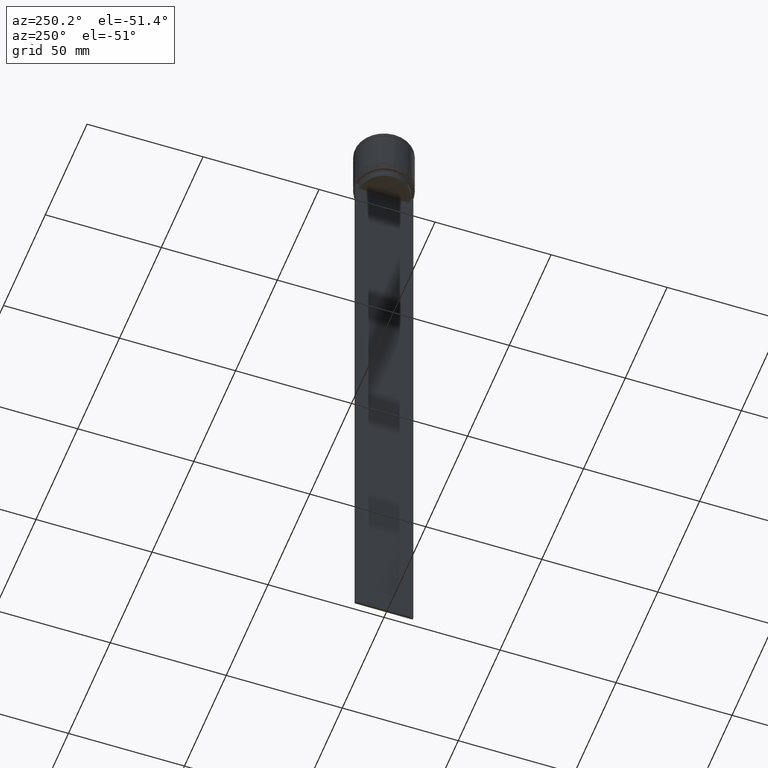
[diagram: clean part render]
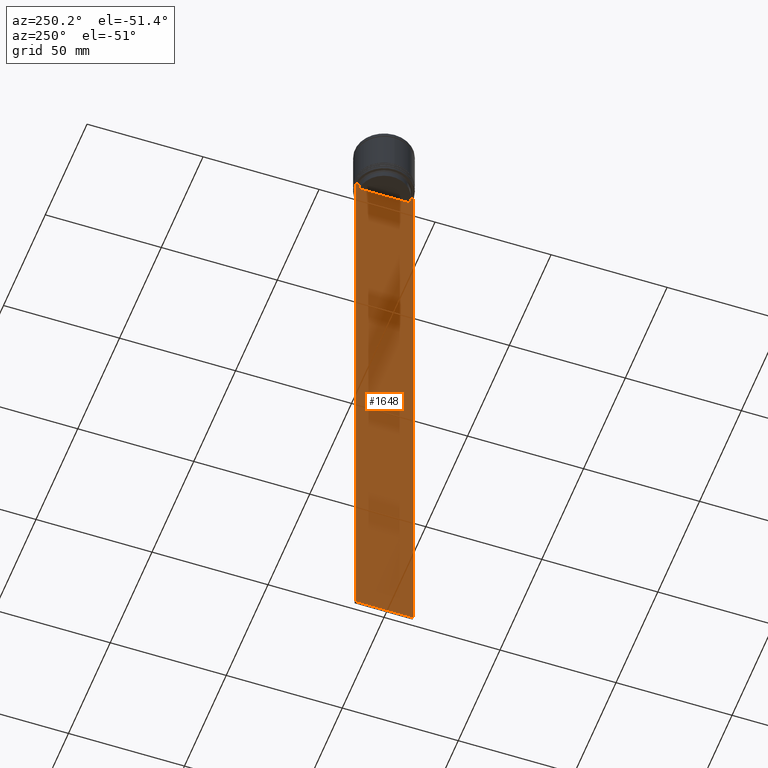
[diagram: same view with one face highlighted and labeled with its STEP entity id]
A machine part, auxiliary view. The second image highlights one B-rep face of the part: STEP entity #1648.
In plain terms, the highlighted planar face has unit normal (-1, 0, 0).
Its self-contained STEP definition (entity closure, byte-faithful):
#14 = DIRECTION ( 'NONE',  ( -0.000000000000000000, -0.000000000000000000, 1.000000000000000000 ) ) ;
#18 = EDGE_CURVE ( 'NONE', #106, #511, #996, .T. ) ;
#19 = CARTESIAN_POINT ( 'NONE',  ( -0.5000000000000000000, 12.38991525394746596, -22.50000000000000000 ) ) ;
#26 = AXIS2_PLACEMENT_3D ( 'NONE', #1217, #409, #1652 ) ;
#34 = LINE ( 'NONE', #1143, #1116 ) ;
#48 = ORIENTED_EDGE ( 'NONE', *, *, #859, .T. ) ;
#55 = EDGE_CURVE ( 'NONE', #2069, #106, #967, .T. ) ;
#103 = ORIENTED_EDGE ( 'NONE', *, *, #1819, .F. ) ;
#106 = VERTEX_POINT ( 'NONE', #701 ) ;
#107 = VERTEX_POINT ( 'NONE', #1813 ) ;
#110 = EDGE_CURVE ( 'NONE', #399, #107, #1956, .T. ) ;
#114 = VECTOR ( 'NONE', #1964, 1000.000000000000000 ) ;
#136 = EDGE_CURVE ( 'NONE', #511, #1829, #857, .T. ) ;
#141 = LINE ( 'NONE', #827, #1552 ) ;
#146 = CARTESIAN_POINT ( 'NONE',  ( -0.5000000000000000000, -11.05536450423839412, -22.83333718996392747 ) ) ;
#164 = CARTESIAN_POINT ( 'NONE',  ( -0.5000000000000000000, 11.38902980942626897, -22.50000000000000000 ) ) ;
#176 = DIRECTION ( 'NONE',  ( 0.000000000000000000, -1.000000000000000000, 0.000000000000000000 ) ) ;
#194 = CARTESIAN_POINT ( 'NONE',  ( -0.5000000000000000000, 10.88852607105296855, -25.50000000000000000 ) ) ;
#222 = LINE ( 'NONE', #865, #1441 ) ;
#239 = ORIENTED_EDGE ( 'NONE', *, *, #1236, .F. ) ;
#250 = ORIENTED_EDGE ( 'NONE', *, *, #18, .F. ) ;
#269 = EDGE_CURVE ( 'NONE', #356, #871, #1378, .T. ) ;
#353 = ORIENTED_EDGE ( 'NONE', *, *, #55, .F. ) ;
#356 = VERTEX_POINT ( 'NONE', #412 ) ;
#375 = VECTOR ( 'NONE', #1844, 1000.000000000000000 ) ;
#384 = EDGE_CURVE ( 'NONE', #1619, #619, #222, .T. ) ;
#390 = CARTESIAN_POINT ( 'NONE',  ( -0.5000000000000000000, -12.49999999999999289, -294.5000000000000568 ) ) ;
#399 = VERTEX_POINT ( 'NONE', #390 ) ;
#409 = DIRECTION ( 'NONE',  ( -1.000000000000000000, 0.000000000000000000, 0.000000000000000000 ) ) ;
#412 = CARTESIAN_POINT ( 'NONE',  ( -0.5000000000000000000, 11.38902980942626897, -22.50000000000000000 ) ) ;
#486 = CARTESIAN_POINT ( 'NONE',  ( -0.5000000000000000000, -12.49999999999999289, -294.5000000000000568 ) ) ;
#511 = VERTEX_POINT ( 'NONE', #1603 ) ;
#546 = DIRECTION ( 'NONE',  ( 0.000000000000000000, 0.000000000000000000, -1.000000000000000000 ) ) ;
#565 = CARTESIAN_POINT ( 'NONE',  ( -0.5000000000000000000, 10.88852607105297032, 0.000000000000000000 ) ) ;
#595 = ORIENTED_EDGE ( 'NONE', *, *, #269, .F. ) ;
#619 = VERTEX_POINT ( 'NONE', #1621 ) ;
#639 = VECTOR ( 'NONE', #733, 1000.000000000000000 ) ;
#699 = VERTEX_POINT ( 'NONE', #19 ) ;
#701 = CARTESIAN_POINT ( 'NONE',  ( -0.5000000000000000000, -10.88852607105296855, -25.50000000000000000 ) ) ;
#714 = CARTESIAN_POINT ( 'NONE',  ( -0.5000000000000000000, 12.50000000000000711, -22.50000000000000000 ) ) ;
#717 = ORIENTED_EDGE ( 'NONE', *, *, #1880, .F. ) ;
#730 = CARTESIAN_POINT ( 'NONE',  ( -0.5000000000000000000, -12.38991525394746596, -22.50000000000000000 ) ) ;
#733 = DIRECTION ( 'NONE',  ( 0.000000000000000000, -1.000000000000000000, 0.000000000000000000 ) ) ;
#734 = CARTESIAN_POINT ( 'NONE',  ( -0.5000000000000000000, 10.88852607105297032, -22.99999999999999645 ) ) ;
#806 = CARTESIAN_POINT ( 'NONE',  ( -0.5000000000000000000, -11.22219891450653151, -22.66667035398018726 ) ) ;
#815 = DIRECTION ( 'NONE',  ( 0.000000000000000000, 0.000000000000000000, -1.000000000000000000 ) ) ;
#823 = CARTESIAN_POINT ( 'NONE',  ( -0.5000000000000000000, 11.22219891375843126, -22.66667035472756808 ) ) ;
#827 = CARTESIAN_POINT ( 'NONE',  ( -0.5000000000000000000, -12.49999999999999289, 2.519992006393609874 ) ) ;
#830 = CARTESIAN_POINT ( 'NONE',  ( -0.5000000000000000000, -10.88852607105297032, 0.000000000000000000 ) ) ;
#856 = CARTESIAN_POINT ( 'NONE',  ( -0.5000000000000000000, 10.88852607105297032, -22.99999999999999645 ) ) ;
#857 = B_SPLINE_CURVE_WITH_KNOTS ( 'NONE', 3,
 ( #1178, #146, #806, #1460 ),
 .UNSPECIFIED., .F., .F.,
 ( 4, 4 ),
 ( 0.05041323384703231408, 0.05112713601261610619 ),
 .UNSPECIFIED. ) ;
#859 = EDGE_CURVE ( 'NONE', #1237, #107, #951, .T. ) ;
#864 = PLANE ( 'NONE',  #26 ) ;
#865 = CARTESIAN_POINT ( 'NONE',  ( -0.5000000000000000000, -12.49999999999999289, -22.50000000000000000 ) ) ;
#871 = VERTEX_POINT ( 'NONE', #734 ) ;
#875 = FACE_OUTER_BOUND ( 'NONE', #1347, .T. ) ;
#919 = VECTOR ( 'NONE', #14, 1000.000000000000000 ) ;
#951 = LINE ( 'NONE', #1225, #375 ) ;
#967 = LINE ( 'NONE', #1210, #639 ) ;
#989 = VECTOR ( 'NONE', #1528, 1000.000000000000000 ) ;
#996 = LINE ( 'NONE', #830, #919 ) ;
#1071 = EDGE_CURVE ( 'NONE', #1829, #1619, #34, .T. ) ;
#1116 = VECTOR ( 'NONE', #176, 1000.000000000000000 ) ;
#1120 = CARTESIAN_POINT ( 'NONE',  ( -0.5000000000000000000, -12.49999999999999289, -22.50000000000000000 ) ) ;
#1143 = CARTESIAN_POINT ( 'NONE',  ( -0.5000000000000000000, -12.49999999999999289, -22.50000000000000000 ) ) ;
#1178 = CARTESIAN_POINT ( 'NONE',  ( -0.5000000000000000000, -10.88852607105297032, -22.99999999999999645 ) ) ;
#1206 = ORIENTED_EDGE ( 'NONE', *, *, #2060, .F. ) ;
#1210 = CARTESIAN_POINT ( 'NONE',  ( -0.5000000000000000000, 10.90000000000000924, -25.50000000000000000 ) ) ;
#1217 = CARTESIAN_POINT ( 'NONE',  ( -0.5000000000000000000, -12.49999999999999289, 2.519992006393609874 ) ) ;
#1225 = CARTESIAN_POINT ( 'NONE',  ( -0.5000000000000000000, 12.50000000000000711, 2.519992006393609874 ) ) ;
#1236 = EDGE_CURVE ( 'NONE', #871, #2069, #1974, .T. ) ;
#1237 = VERTEX_POINT ( 'NONE', #714 ) ;
#1292 = ORIENTED_EDGE ( 'NONE', *, *, #1071, .F. ) ;
#1329 = CARTESIAN_POINT ( 'NONE',  ( -0.5000000000000000000, -12.49999999999999289, -22.50000000000000000 ) ) ;
#1347 = EDGE_LOOP ( 'NONE', ( #595, #1206, #717, #48, #1774, #103, #1952, #1292, #1872, #250, #353, #239 ) ) ;
#1378 = B_SPLINE_CURVE_WITH_KNOTS ( 'NONE', 3,
 ( #164, #823, #1462, #856 ),
 .UNSPECIFIED., .F., .F.,
 ( 4, 4 ),
 ( 0.01935560801904635808, 0.02006307108468587813 ),
 .UNSPECIFIED. ) ;
#1441 = VECTOR ( 'NONE', #1653, 1000.000000000000000 ) ;
#1460 = CARTESIAN_POINT ( 'NONE',  ( -0.5000000000000000000, -11.38902980942626897, -22.50000000000000000 ) ) ;
#1462 = CARTESIAN_POINT ( 'NONE',  ( -0.5000000000000000000, 11.05536450345590715, -22.83333719074559554 ) ) ;
#1518 = VECTOR ( 'NONE', #1613, 1000.000000000000000 ) ;
#1528 = DIRECTION ( 'NONE',  ( 0.000000000000000000, -1.000000000000000000, 0.000000000000000000 ) ) ;
#1552 = VECTOR ( 'NONE', #815, 1000.000000000000000 ) ;
#1603 = CARTESIAN_POINT ( 'NONE',  ( -0.5000000000000000000, -10.88852607105297032, -22.99999999999999645 ) ) ;
#1613 = DIRECTION ( 'NONE',  ( 0.000000000000000000, -1.000000000000000000, 0.000000000000000000 ) ) ;
#1619 = VERTEX_POINT ( 'NONE', #730 ) ;
#1621 = CARTESIAN_POINT ( 'NONE',  ( -0.5000000000000000000, -12.49999999999999289, -22.50000000000000000 ) ) ;
#1648 = ADVANCED_FACE ( 'NONE', ( #875 ), #864, .T. ) ;
#1652 = DIRECTION ( 'NONE',  ( 0.000000000000000000, 0.000000000000000000, 1.000000000000000000 ) ) ;
#1653 = DIRECTION ( 'NONE',  ( 0.000000000000000000, -1.000000000000000000, 0.000000000000000000 ) ) ;
#1755 = LINE ( 'NONE', #1120, #1518 ) ;
#1774 = ORIENTED_EDGE ( 'NONE', *, *, #110, .F. ) ;
#1807 = VECTOR ( 'NONE', #546, 1000.000000000000000 ) ;
#1813 = CARTESIAN_POINT ( 'NONE',  ( -0.5000000000000000000, 12.50000000000000711, -294.5000000000000568 ) ) ;
#1819 = EDGE_CURVE ( 'NONE', #619, #399, #141, .T. ) ;
#1829 = VERTEX_POINT ( 'NONE', #1901 ) ;
#1834 = LINE ( 'NONE', #1329, #989 ) ;
#1844 = DIRECTION ( 'NONE',  ( 0.000000000000000000, 0.000000000000000000, -1.000000000000000000 ) ) ;
#1872 = ORIENTED_EDGE ( 'NONE', *, *, #136, .F. ) ;
#1880 = EDGE_CURVE ( 'NONE', #1237, #699, #1755, .T. ) ;
#1901 = CARTESIAN_POINT ( 'NONE',  ( -0.5000000000000000000, -11.38902980942626897, -22.50000000000000000 ) ) ;
#1952 = ORIENTED_EDGE ( 'NONE', *, *, #384, .F. ) ;
#1956 = LINE ( 'NONE', #486, #114 ) ;
#1964 = DIRECTION ( 'NONE',  ( 0.000000000000000000, 1.000000000000000000, 0.000000000000000000 ) ) ;
#1974 = LINE ( 'NONE', #565, #1807 ) ;
#2060 = EDGE_CURVE ( 'NONE', #699, #356, #1834, .T. ) ;
#2069 = VERTEX_POINT ( 'NONE', #194 ) ;